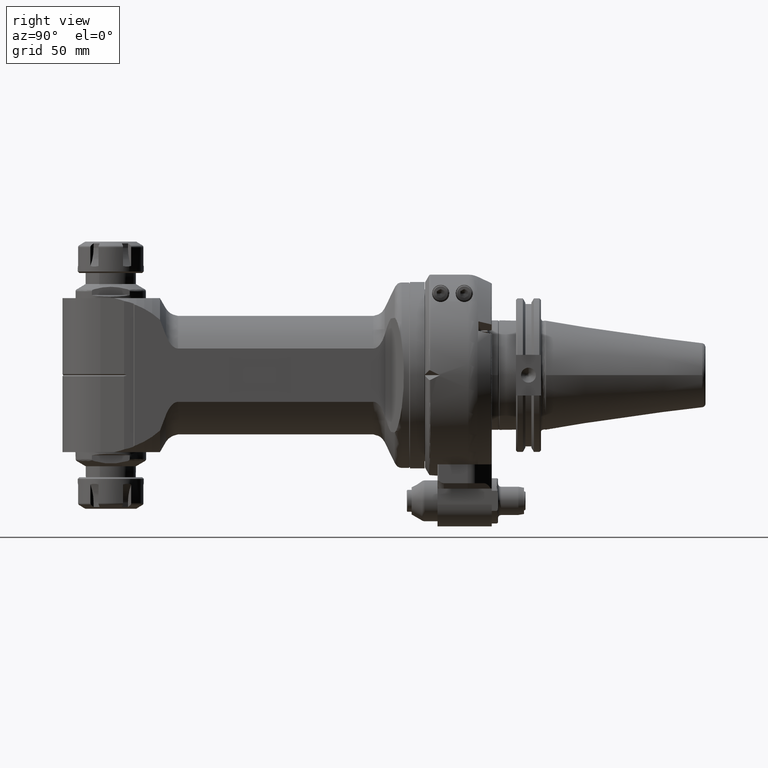
[diagram: clean part render]
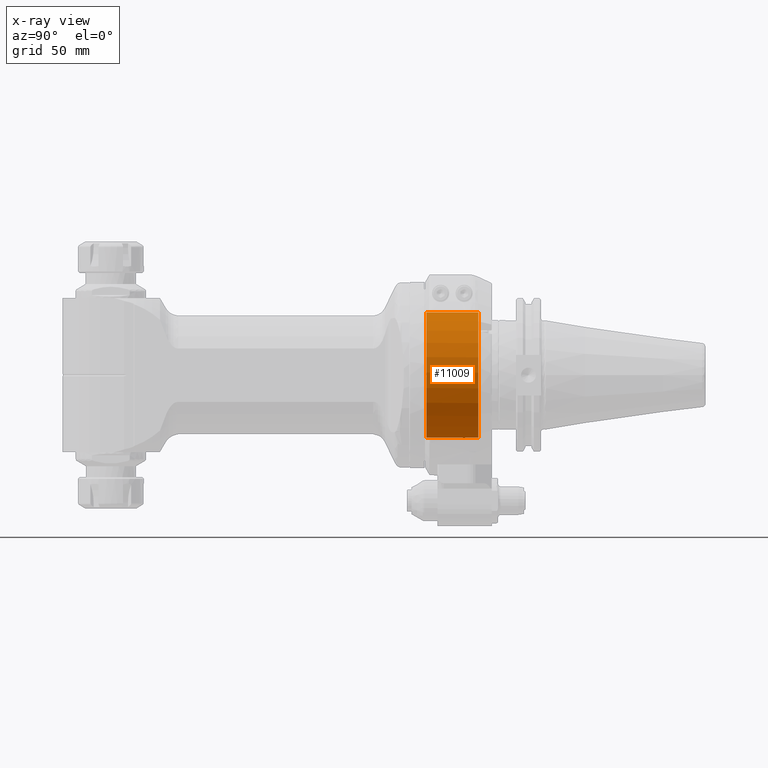
[diagram: x-ray — body ghosted, one internal face saturated and labeled with its STEP entity id]
A machine part, right view, then the same camera in x-ray: the body is ghosted and one INTERNAL B-rep face — a face not visible from any outside direction — is saturated and labeled: STEP entity #11009.
In plain terms, the highlighted cylindrical surface (partial cylindrical patch) has radius 40 mm, axis along (0, -1, 0).
Its self-contained STEP definition (entity closure, byte-faithful):
#1386=FACE_OUTER_BOUND('',#2116,.T.);
#2116=EDGE_LOOP('',(#8817,#8818,#8819,#8820,#8821,#8822,#8823,#8824));
#2764=LINE('',#18587,#3439);
#2772=LINE('',#18679,#3447);
#2785=LINE('',#18871,#3460);
#2789=LINE('',#18881,#3464);
#3439=VECTOR('',#14229,32.99999976923);
#3447=VECTOR('',#14259,32.99999976923);
#3460=VECTOR('',#14318,8.499999538462);
#3464=VECTOR('',#14328,8.499999538462);
#4121=CIRCLE('',#12055,40.);
#4126=CIRCLE('',#12066,40.);
#4127=CIRCLE('',#12067,40.);
#4128=CIRCLE('',#12068,40.);
#4940=VERTEX_POINT('',#18584);
#4941=VERTEX_POINT('',#18586);
#4955=VERTEX_POINT('',#18676);
#4956=VERTEX_POINT('',#18678);
#4975=VERTEX_POINT('',#18806);
#4985=VERTEX_POINT('',#18870);
#4987=VERTEX_POINT('',#18878);
#4988=VERTEX_POINT('',#18880);
#6300=EDGE_CURVE('',#4941,#4940,#2764,.T.);
#6321=EDGE_CURVE('',#4956,#4955,#2772,.T.);
#6346=EDGE_CURVE('',#4956,#4975,#4121,.T.);
#6361=EDGE_CURVE('',#4985,#4975,#2785,.T.);
#6365=EDGE_CURVE('',#4941,#4955,#4126,.T.);
#6366=EDGE_CURVE('',#4987,#4940,#4127,.T.);
#6367=EDGE_CURVE('',#4987,#4988,#2789,.T.);
#6368=EDGE_CURVE('',#4985,#4988,#4128,.T.);
#8817=ORIENTED_EDGE('',*,*,#6365,.F.);
#8818=ORIENTED_EDGE('',*,*,#6300,.T.);
#8819=ORIENTED_EDGE('',*,*,#6366,.F.);
#8820=ORIENTED_EDGE('',*,*,#6367,.T.);
#8821=ORIENTED_EDGE('',*,*,#6368,.F.);
#8822=ORIENTED_EDGE('',*,*,#6361,.T.);
#8823=ORIENTED_EDGE('',*,*,#6346,.F.);
#8824=ORIENTED_EDGE('',*,*,#6321,.T.);
#10597=CYLINDRICAL_SURFACE('',#12065,40.);
#11009=ADVANCED_FACE('',(#1386),#10597,.F.);
#12055=AXIS2_PLACEMENT_3D('',#18807,#14292,#14293);
#12065=AXIS2_PLACEMENT_3D('',#18876,#14322,#14323);
#12066=AXIS2_PLACEMENT_3D('',#18877,#14324,#14325);
#12067=AXIS2_PLACEMENT_3D('',#18879,#14326,#14327);
#12068=AXIS2_PLACEMENT_3D('',#18882,#14329,#14330);
#14229=DIRECTION('',(0.,1.,0.));
#14259=DIRECTION('',(0.,-1.,0.));
#14292=DIRECTION('center_axis',(0.,-1.,0.));
#14293=DIRECTION('ref_axis',(-0.0374999961538496,0.,0.999296627777989));
#14318=DIRECTION('',(0.,1.,0.));
#14322=DIRECTION('center_axis',(0.,-1.,0.));
#14323=DIRECTION('ref_axis',(-1.22464679914735E-16,0.,-1.));
#14324=DIRECTION('center_axis',(0.,1.,0.));
#14325=DIRECTION('ref_axis',(0.,0.,-1.));
#14326=DIRECTION('center_axis',(0.,-1.,0.));
#14327=DIRECTION('ref_axis',(0.112499999999996,0.,-0.993651724700361));
#14328=DIRECTION('',(0.,-1.,0.));
#14329=DIRECTION('center_axis',(0.,-1.,0.));
#14330=DIRECTION('ref_axis',(0.,0.,-1.));
#18584=CARTESIAN_POINT('',(1.499999846154,33.99999976923,39.97186511112));
#18586=CARTESIAN_POINT('',(1.499999846154,0.999999999999999,39.97186511112));
#18587=CARTESIAN_POINT('',(1.499999846154,0.999999999999999,39.97186511112));
#18676=CARTESIAN_POINT('',(-1.499999846154,0.999999999999999,39.97186511112));
#18678=CARTESIAN_POINT('',(-1.499999846154,33.99999976923,39.97186511112));
#18679=CARTESIAN_POINT('',(-1.499999846154,33.99999976923,39.97186511112));
#18806=CARTESIAN_POINT('',(-4.5,33.99999976923,-39.74606898801));
#18807=CARTESIAN_POINT('Origin',(0.,33.99999976923,0.));
#18870=CARTESIAN_POINT('',(-4.5,25.50000023077,-39.74606898801));
#18871=CARTESIAN_POINT('',(-4.5,25.50000023077,-39.74606898801));
#18876=CARTESIAN_POINT('Origin',(0.,21.07692284615,0.));
#18877=CARTESIAN_POINT('Origin',(0.,0.999999999999999,0.));
#18878=CARTESIAN_POINT('',(4.5,33.99999976923,-39.74606898801));
#18879=CARTESIAN_POINT('Origin',(0.,33.99999976923,0.));
#18880=CARTESIAN_POINT('',(4.5,25.50000023077,-39.74606898801));
#18881=CARTESIAN_POINT('',(4.5,33.99999976923,-39.74606898801));
#18882=CARTESIAN_POINT('Origin',(0.,25.50000023077,0.));